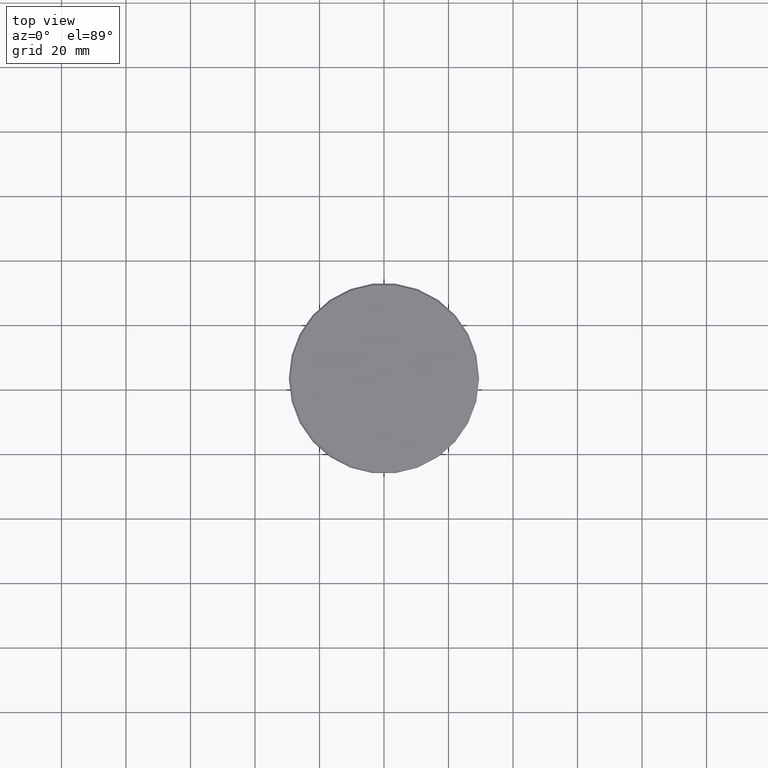
[diagram: clean part render]
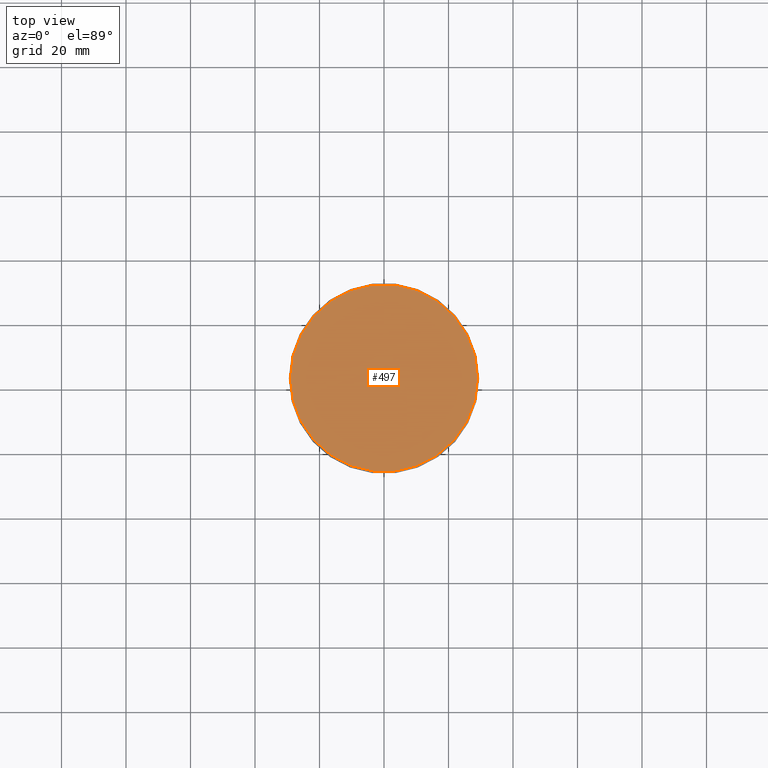
[diagram: same view with one face highlighted and labeled with its STEP entity id]
A machine part, top view. The second image highlights one B-rep face of the part: STEP entity #497.
In plain terms, the highlighted planar face has unit normal (0, -0, 1).
Its self-contained STEP definition (entity closure, byte-faithful):
#34 = CIRCLE ( 'NONE', #961, 28.99999999999997158 ) ;
#51 = CIRCLE ( 'NONE', #748, 28.99999999999997158 ) ;
#61 = CARTESIAN_POINT ( 'NONE',  ( 0.000000000000000000, 0.000000000000000000, 0.000000000000000000 ) ) ;
#64 = DIRECTION ( 'NONE',  ( -0.000000000000000000, -0.000000000000000000, 1.000000000000000000 ) ) ;
#196 = CARTESIAN_POINT ( 'NONE',  ( -28.99999999999997158, 0.000000000000000000, 0.000000000000000000 ) ) ;
#199 = VERTEX_POINT ( 'NONE', #196 ) ;
#242 = DIRECTION ( 'NONE',  ( 1.000000000000000000, 0.000000000000000000, 0.000000000000000000 ) ) ;
#261 = ORIENTED_EDGE ( 'NONE', *, *, #542, .T. ) ;
#339 = CARTESIAN_POINT ( 'NONE',  ( 28.99999999999997158, 3.582091887506006239E-15, 0.000000000000000000 ) ) ;
#349 = FACE_OUTER_BOUND ( 'NONE', #878, .T. ) ;
#353 = DIRECTION ( 'NONE',  ( 1.000000000000000000, 0.000000000000000000, 0.000000000000000000 ) ) ;
#369 = VERTEX_POINT ( 'NONE', #339 ) ;
#437 = DIRECTION ( 'NONE',  ( -0.000000000000000000, -0.000000000000000000, 1.000000000000000000 ) ) ;
#497 = ADVANCED_FACE ( 'NONE', ( #349 ), #559, .T. ) ;
#542 = EDGE_CURVE ( 'NONE', #199, #369, #51, .T. ) ;
#559 = PLANE ( 'NONE',  #1072 ) ;
#624 = CARTESIAN_POINT ( 'NONE',  ( 0.000000000000000000, 0.000000000000000000, 0.000000000000000000 ) ) ;
#705 = CARTESIAN_POINT ( 'NONE',  ( 0.000000000000000000, 0.000000000000000000, 0.000000000000000000 ) ) ;
#748 = AXIS2_PLACEMENT_3D ( 'NONE', #705, #64, #353 ) ;
#793 = EDGE_CURVE ( 'NONE', #369, #199, #34, .T. ) ;
#878 = EDGE_LOOP ( 'NONE', ( #261, #1139 ) ) ;
#961 = AXIS2_PLACEMENT_3D ( 'NONE', #61, #437, #1144 ) ;
#1047 = DIRECTION ( 'NONE',  ( 0.000000000000000000, -0.000000000000000000, 1.000000000000000000 ) ) ;
#1072 = AXIS2_PLACEMENT_3D ( 'NONE', #624, #1047, #242 ) ;
#1139 = ORIENTED_EDGE ( 'NONE', *, *, #793, .T. ) ;
#1144 = DIRECTION ( 'NONE',  ( 1.000000000000000000, 0.000000000000000000, 0.000000000000000000 ) ) ;